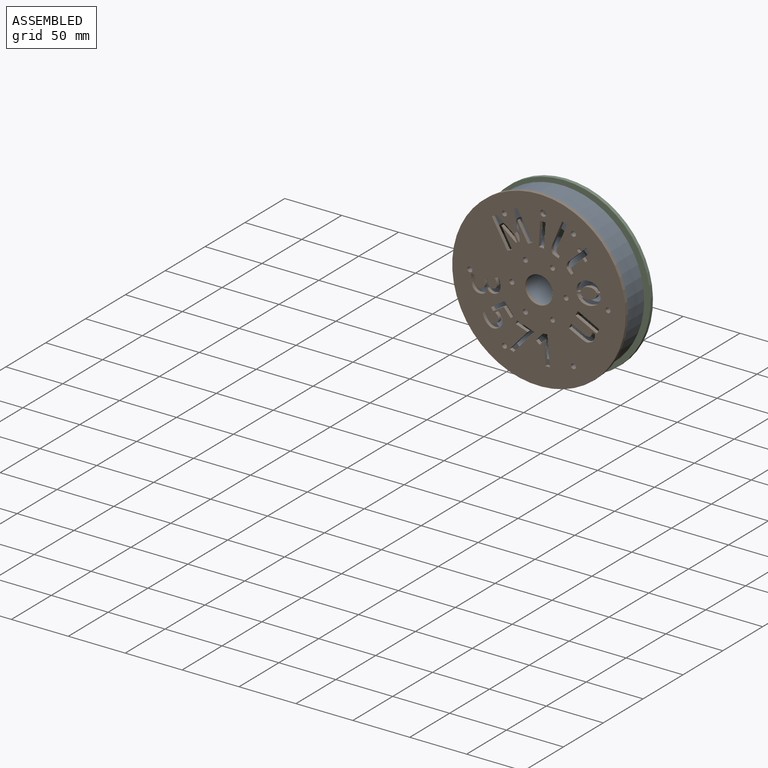
[diagram: assembled view]
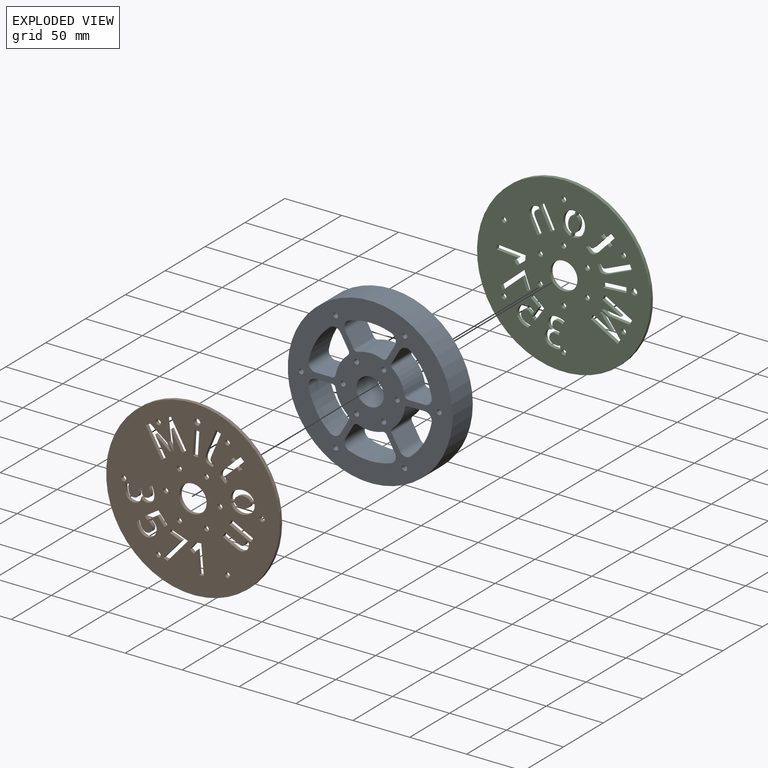
[diagram: exploded view]
GUIDED TOUR — MATED ASSEMBLY (Onshape document 58f788079ea4b90f86e522ae, AutoMate assembly 58f788079ea4b90f86e522ae_59f90559cadc7d9f1daaefe4_0afa27d7b1bdd366b675f6e3_default)

This assembly has 3 components, labeled P0..P2 below (a component is one placed occurrence of a part; the same part can appear more than once), held together by 4 mates. A mate is a constraint between two components; its type names the relative motion it leaves free:
  PARALLEL — keeps the two listed directions parallel.
Axis/direction vectors are unit vectors and 'through' points are millimeter coordinates, both in the assembly's world frame.

MATES
  1. PARALLEL "Parallel 1": P1 <-> P0, direction (0.000, 1.000, 0.000) through (36.96, 40.99, 50.69) mm
  2. PARALLEL "Parallel 3": P0 <-> P1, direction (0.000, -1.000, 0.000) through (36.96, 40.99, 50.69) mm
  3. PARALLEL "Parallel 4": P2 <-> P0, direction (0.000, -1.000, 0.000) through (38.71, 66.39, 51.34) mm
  4. PARALLEL "Parallel 2": P0 <-> P2, direction (0.000, 1.000, 0.000) through (36.96, 66.39, 50.69) mm

ASSEMBLY ORDER
  1. P2 — the base component [order verified]
  2. P0 [order verified]
  3. P1 [order verified]
Order-tag legend:
  [order verified] — this step's position reverses a verified removal order: the component was checked to insert without passing through the ones already placed.

Of the 3 components, 1 carries the full construction recipe — the FeatureScript program that regenerates the part's solid from scratch; the rest are supplied as boundary geometry only.
Each toured component is shown spotlighted twice — in the assembled view, then in the exploded view, where a leader line traces a displaced component back to its assembled socket (saturated green if recipe-attached, orange if geometry-only; every other component desaturated gray) — followed by its recipe or geometry summary and the mates that hold it.
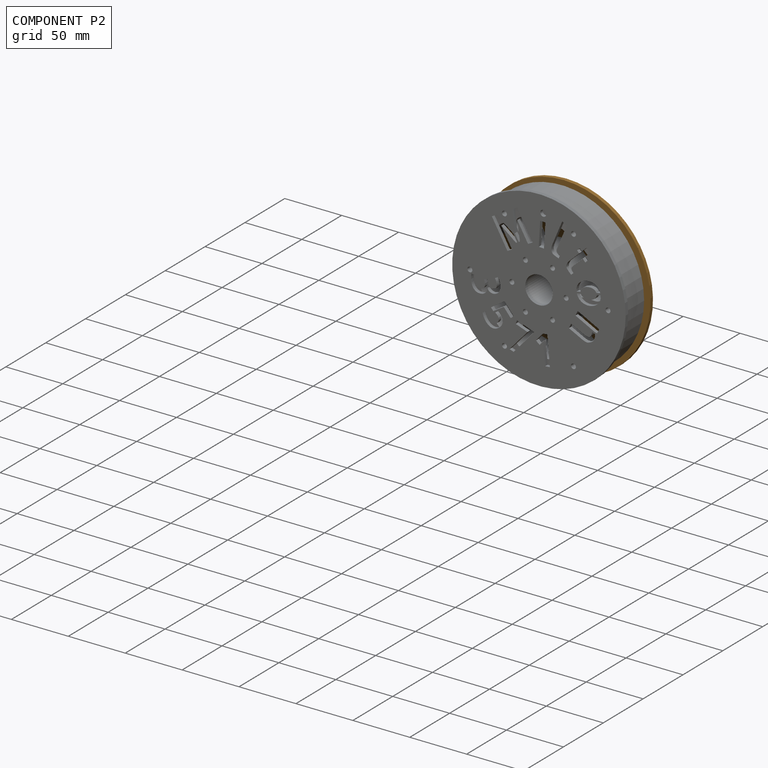
[diagram: component P2 — assembled]
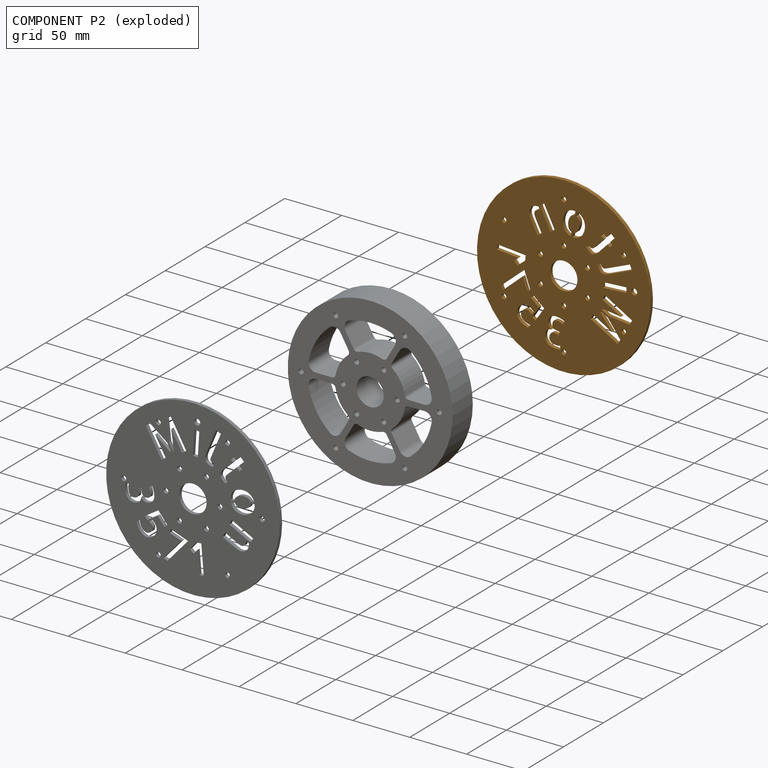
[diagram: component P2 — exploded]
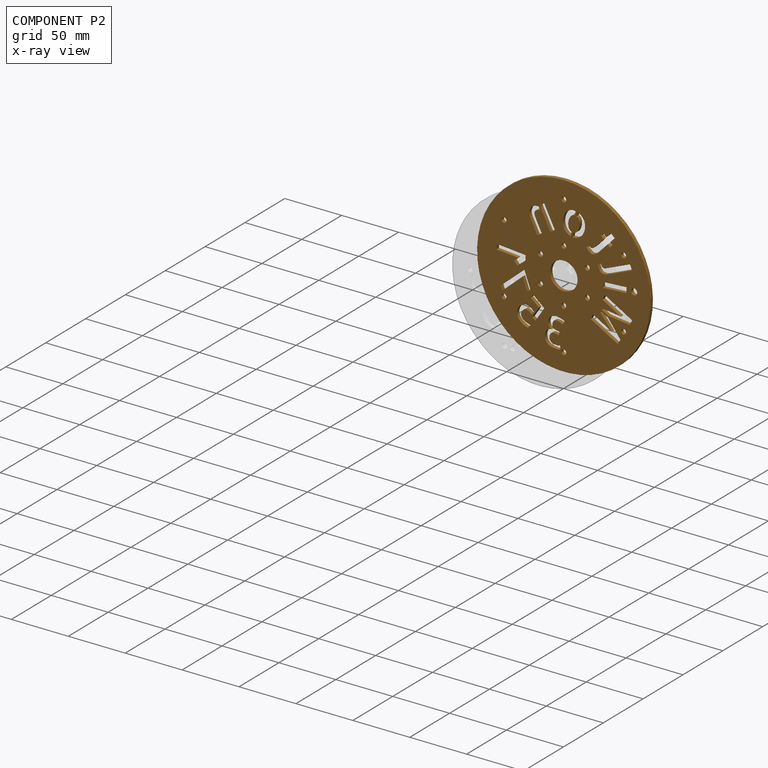
[diagram: component P2 — x-ray view]
COMPONENT P2 — geometry summary (no construction recipe available for this part):
  bounding box: 152.4 x 152.4 x 3.2 mm
  B-rep topology: 1 solid, 240 faces, 1428 edges
  volume: 50139 mm^3 (68% of its bounding box)
  symmetry: mirror-symmetric across its y mid-plane
Held by: PARALLEL mate "Parallel 4" to P0; PARALLEL mate "Parallel 2" to P0.
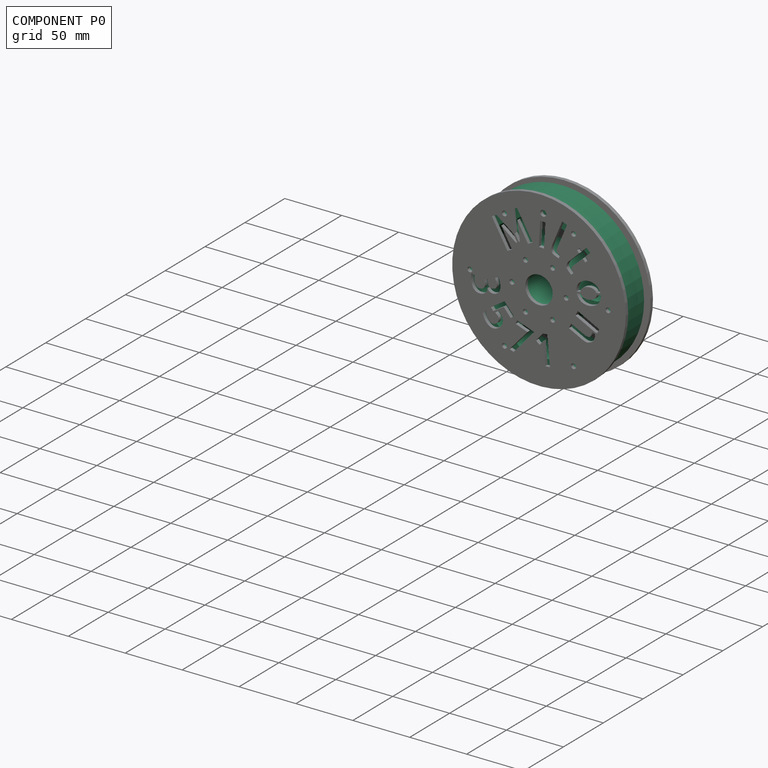
[diagram: component P0 — assembled]
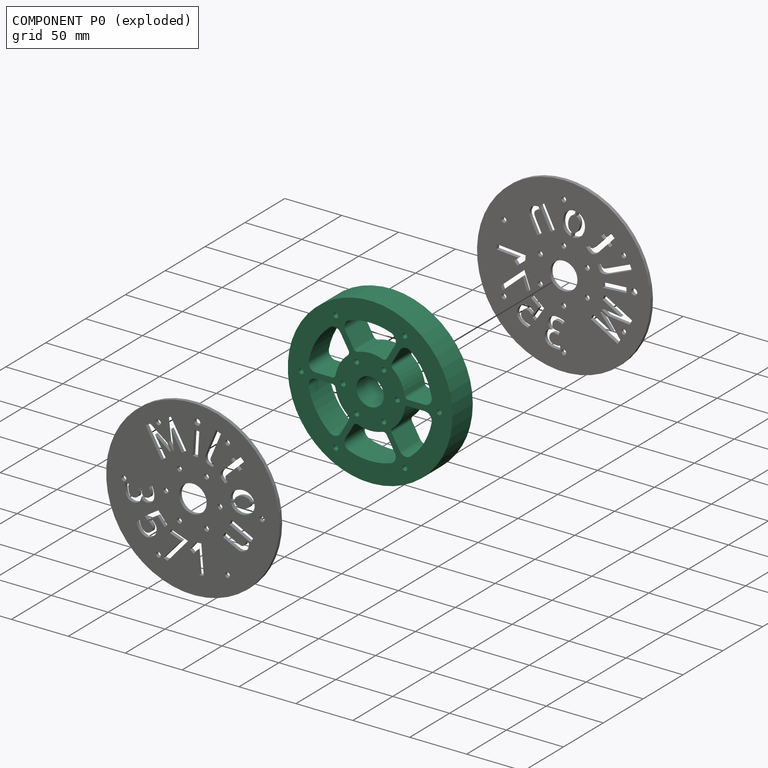
[diagram: component P0 — exploded]
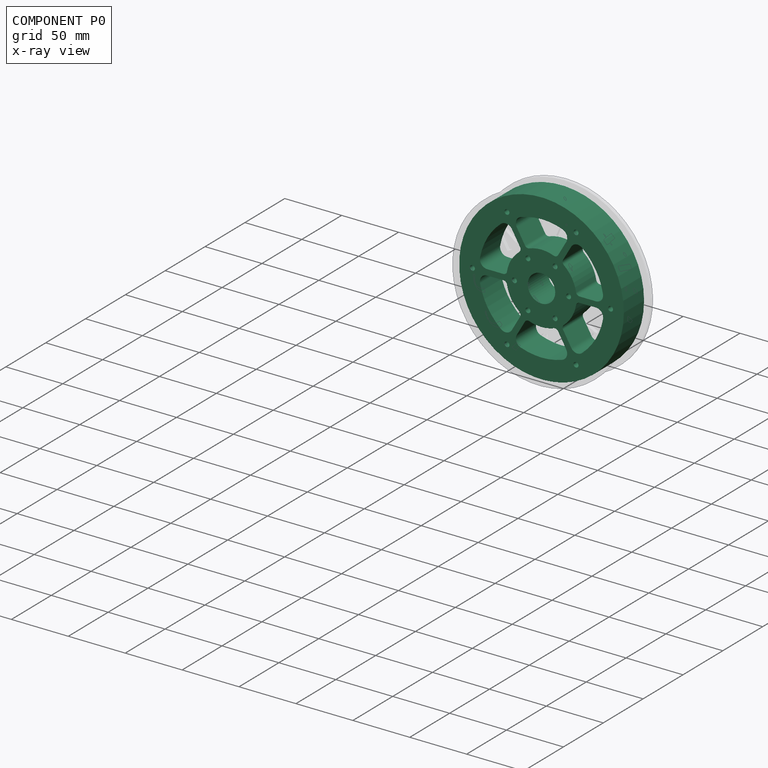
[diagram: component P0 — x-ray view]
COMPONENT P0 — recipe-attached (CADFS 00721105, mesh-verified: the recipe's output STEP matches this component's geometry to below the mesh-comparison resolution (tessellation chordal tolerance ~0.309 mm)).
Held by: PARALLEL mate "Parallel 1" to P1; PARALLEL mate "Parallel 3" to P1; PARALLEL mate "Parallel 4" to P2; PARALLEL mate "Parallel 2" to P2.
Construction recipe (FeatureScript — the CAD program that rebuilds this solid; sketch coordinates are in the units given by the * unit suffixes, e.g. mm):

FeatureScript 1549;
import(path : "onshape/std/geometry.fs", version : "1549.0");
import(path : "onshape/std/common.fs", version : "1549.0");
const mm = millimeter;
const VERTEX = EntityType.VERTEX;
const EDGE = EntityType.EDGE;
const FACE = EntityType.FACE;
const BODY = EntityType.BODY;
function v(x, y){return vector(x, y);}
function OD(order){return orderDisambiguation(order);}
function OSD(set){return originalSetDisambiguation(set);}
function TD(topology){return topologyDisambiguation(topology);}
function TDD(query){return trueDependencyDisambiguation(query);}
function sQuery(a, b, c) {return sketchEntityQuery(a, b, c);}

annotation { "Feature Type Name" : "Feature", "Feature Type Description" : "" }
export const myFeature = defineFeature(function(context is Context, id is Id, definition is map)
    precondition{}
    {
        {
            var Q0;
            Q0=qCreatedBy(makeId("Front.planeOp"),FACE);
            var sketch = newSketch(context, id + "F0", { "sketchPlane" : qUnion([Q0])});
            skCircle(sketch, "E0", {"center": v(0, 0) * mm, "radius": 12.07 * mm});
            skCircle(sketch, "E1", {"center": v(0, 0) * mm, "radius": 72.4 * mm});
            skArc(sketch, "E2", {"start": v(10.72, 28.9) * mm, "mid": v(5.44, 30.32) * mm, "end": v(0, 30.84) * mm});
            skArc(sketch, "E3", {"start": v(18.26, 51.81) * mm, "mid": v(9.26, 54.13) * mm, "end": v(0, 54.94) * mm});
            skPoint(sketch, "E4.visualSharp", {"position": v(25.27, 48.85) * mm});
            skArc(sketch, "E4.filletArc", {"start": v(21.68, 42.64) * mm, "mid": v(22.13, 48.03) * mm, "end": v(18.26, 51.81) * mm});
            skArc(sketch, "E5.MirrorCS", {"start": v(-18.26, 51.81) * mm, "mid": v(-9.26, 54.13) * mm, "end": v(0, 54.94) * mm});
            skArc(sketch, "E6.MirrorCS", {"start": v(-21.68, 42.64) * mm, "mid": v(-22.13, 48.03) * mm, "end": v(-18.26, 51.81) * mm});
            skArc(sketch, "E7.MirrorCS", {"start": v(-10.72, 28.9) * mm, "mid": v(-5.44, 30.32) * mm, "end": v(0, 30.84) * mm});
            skLineSegment(sketch, "E8", {"start": v(-21.68, 42.64) * mm, "end": v(-14.55, 30.29) * mm});
            skLineSegment(sketch, "E9", {"start": v(21.68, 42.64) * mm, "end": v(14.55, 30.29) * mm});
            skPoint(sketch, "E10.visualSharp", {"position": v(-13.17, 27.88) * mm});
            skArc(sketch, "E10.filletArc", {"start": v(-14.55, 30.29) * mm, "mid": v(-12.89, 28.9) * mm, "end": v(-10.72, 28.9) * mm});
            skPoint(sketch, "E11.visualSharp", {"position": v(13.17, 27.88) * mm});
            skArc(sketch, "E11.filletArc", {"start": v(10.72, 28.9) * mm, "mid": v(12.89, 28.9) * mm, "end": v(14.55, 30.29) * mm});
            skPoint(sketch, "E12.1.0", {"position": v(-30.73, 2.54) * mm});
            skArc(sketch, "E12.1.1", {"start": v(-35.74, 41.72) * mm, "mid": v(-42.24, 35.08) * mm, "end": v(-47.58, 27.47) * mm});
            skArc(sketch, "E12.1.2", {"start": v(-54, 10.1) * mm, "mid": v(-51.5, 19.04) * mm, "end": v(-47.58, 27.47) * mm});
            skPoint(sketch, "E12.1.3", {"position": v(-29.67, 46.3) * mm});
            skLineSegment(sketch, "E12.1.4", {"start": v(-26.08, 40.1) * mm, "end": v(-18.95, 27.75) * mm});
            skArc(sketch, "E12.1.5", {"start": v(-26.08, 40.1) * mm, "mid": v(-30.53, 43.19) * mm, "end": v(-35.74, 41.72) * mm});
            skArc(sketch, "E12.1.6", {"start": v(-19.66, 23.73) * mm, "mid": v(-23.54, 19.87) * mm, "end": v(-26.7, 15.42) * mm});
            skArc(sketch, "E12.1.7", {"start": v(-19.66, 23.73) * mm, "mid": v(-18.58, 25.6) * mm, "end": v(-18.95, 27.75) * mm});
            skLineSegment(sketch, "E12.1.8", {"start": v(-47.77, 2.54) * mm, "end": v(-33.5, 2.54) * mm});
            skArc(sketch, "E12.1.9", {"start": v(-30.38, 5.17) * mm, "mid": v(-28.98, 10.45) * mm, "end": v(-26.7, 15.42) * mm});
            skArc(sketch, "E12.1.10", {"start": v(-33.5, 2.54) * mm, "mid": v(-31.47, 3.28) * mm, "end": v(-30.38, 5.17) * mm});
            skPoint(sketch, "E12.1.11", {"position": v(-17.57, 25.34) * mm});
            skArc(sketch, "E12.1.12", {"start": v(-47.77, 2.54) * mm, "mid": v(-52.66, 4.85) * mm, "end": v(-54, 10.1) * mm});
            skPoint(sketch, "E12.2.0", {"position": v(-17.57, -25.34) * mm});
            skArc(sketch, "E12.2.1", {"start": v(-54, -10.1) * mm, "mid": v(-51.5, -19.04) * mm, "end": v(-47.58, -27.47) * mm});
            skArc(sketch, "E12.2.2", {"start": v(-35.74, -41.72) * mm, "mid": v(-42.24, -35.08) * mm, "end": v(-47.58, -27.47) * mm});
            skPoint(sketch, "E12.2.3", {"position": v(-54.94, -2.54) * mm});
            skLineSegment(sketch, "E12.2.4", {"start": v(-47.77, -2.54) * mm, "end": v(-33.5, -2.54) * mm});
            skArc(sketch, "E12.2.5", {"start": v(-47.77, -2.54) * mm, "mid": v(-52.66, -4.85) * mm, "end": v(-54, -10.1) * mm});
            skArc(sketch, "E12.2.6", {"start": v(-30.38, -5.17) * mm, "mid": v(-28.98, -10.45) * mm, "end": v(-26.7, -15.42) * mm});
            skArc(sketch, "E12.2.7", {"start": v(-30.38, -5.17) * mm, "mid": v(-31.47, -3.28) * mm, "end": v(-33.5, -2.54) * mm});
            skLineSegment(sketch, "E12.2.8", {"start": v(-26.08, -40.1) * mm, "end": v(-18.95, -27.75) * mm});
            skArc(sketch, "E12.2.9", {"start": v(-19.66, -23.73) * mm, "mid": v(-23.54, -19.87) * mm, "end": v(-26.7, -15.42) * mm});
            skArc(sketch, "E12.2.10", {"start": v(-18.95, -27.75) * mm, "mid": v(-18.58, -25.6) * mm, "end": v(-19.66, -23.73) * mm});
            skPoint(sketch, "E12.2.11", {"position": v(-30.73, -2.54) * mm});
            skArc(sketch, "E12.2.12", {"start": v(-26.08, -40.1) * mm, "mid": v(-30.53, -43.19) * mm, "end": v(-35.74, -41.72) * mm});
            skPoint(sketch, "E12.3.0", {"position": v(13.17, -27.88) * mm});
            skArc(sketch, "E12.3.1", {"start": v(-18.26, -51.81) * mm, "mid": v(-9.26, -54.13) * mm, "end": v(0, -54.94) * mm});
            skArc(sketch, "E12.3.2", {"start": v(18.26, -51.81) * mm, "mid": v(9.26, -54.13) * mm, "end": v(0, -54.94) * mm});
            skPoint(sketch, "E12.3.3", {"position": v(-25.27, -48.85) * mm});
            skLineSegment(sketch, "E12.3.4", {"start": v(-21.68, -42.64) * mm, "end": v(-14.55, -30.29) * mm});
            skArc(sketch, "E12.3.5", {"start": v(-21.68, -42.64) * mm, "mid": v(-22.13, -48.03) * mm, "end": v(-18.26, -51.81) * mm});
            skArc(sketch, "E12.3.6", {"start": v(-10.72, -28.9) * mm, "mid": v(-5.44, -30.32) * mm, "end": v(0, -30.84) * mm});
            skArc(sketch, "E12.3.7", {"start": v(-10.72, -28.9) * mm, "mid": v(-12.89, -28.9) * mm, "end": v(-14.55, -30.29) * mm});
            skLineSegment(sketch, "E12.3.8", {"start": v(21.68, -42.64) * mm, "end": v(14.55, -30.29) * mm});
            skArc(sketch, "E12.3.9", {"start": v(10.72, -28.9) * mm, "mid": v(5.44, -30.32) * mm, "end": v(0, -30.84) * mm});
            skArc(sketch, "E12.3.10", {"start": v(14.55, -30.29) * mm, "mid": v(12.89, -28.9) * mm, "end": v(10.72, -28.9) * mm});
            skPoint(sketch, "E12.3.11", {"position": v(-13.17, -27.88) * mm});
            skArc(sketch, "E12.3.12", {"start": v(21.68, -42.64) * mm, "mid": v(22.13, -48.03) * mm, "end": v(18.26, -51.81) * mm});
            skPoint(sketch, "E12.4.0", {"position": v(30.73, -2.54) * mm});
            skArc(sketch, "E12.4.1", {"start": v(35.74, -41.72) * mm, "mid": v(42.24, -35.08) * mm, "end": v(47.58, -27.47) * mm});
            skArc(sketch, "E12.4.2", {"start": v(54, -10.1) * mm, "mid": v(51.5, -19.04) * mm, "end": v(47.58, -27.47) * mm});
            skPoint(sketch, "E12.4.3", {"position": v(29.67, -46.3) * mm});
            skLineSegment(sketch, "E12.4.4", {"start": v(26.08, -40.1) * mm, "end": v(18.95, -27.75) * mm});
            skArc(sketch, "E12.4.5", {"start": v(26.08, -40.1) * mm, "mid": v(30.53, -43.19) * mm, "end": v(35.74, -41.72) * mm});
            skArc(sketch, "E12.4.6", {"start": v(19.66, -23.73) * mm, "mid": v(23.54, -19.87) * mm, "end": v(26.7, -15.42) * mm});
            skArc(sketch, "E12.4.7", {"start": v(19.66, -23.73) * mm, "mid": v(18.58, -25.6) * mm, "end": v(18.95, -27.75) * mm});
            skLineSegment(sketch, "E12.4.8", {"start": v(47.77, -2.54) * mm, "end": v(33.5, -2.54) * mm});
            skArc(sketch, "E12.4.9", {"start": v(30.38, -5.17) * mm, "mid": v(28.98, -10.45) * mm, "end": v(26.7, -15.42) * mm});
            skArc(sketch, "E12.4.10", {"start": v(33.5, -2.54) * mm, "mid": v(31.47, -3.28) * mm, "end": v(30.38, -5.17) * mm});
            skPoint(sketch, "E12.4.11", {"position": v(17.57, -25.34) * mm});
            skArc(sketch, "E12.4.12", {"start": v(47.77, -2.54) * mm, "mid": v(52.66, -4.85) * mm, "end": v(54, -10.1) * mm});
            skPoint(sketch, "E12.5.0", {"position": v(17.57, 25.34) * mm});
            skArc(sketch, "E12.5.1", {"start": v(54, 10.1) * mm, "mid": v(51.5, 19.04) * mm, "end": v(47.58, 27.47) * mm});
            skArc(sketch, "E12.5.2", {"start": v(35.74, 41.72) * mm, "mid": v(42.24, 35.08) * mm, "end": v(47.58, 27.47) * mm});
            skPoint(sketch, "E12.5.3", {"position": v(54.94, 2.54) * mm});
            skLineSegment(sketch, "E12.5.4", {"start": v(47.77, 2.54) * mm, "end": v(33.5, 2.54) * mm});
            skArc(sketch, "E12.5.5", {"start": v(47.77, 2.54) * mm, "mid": v(52.66, 4.85) * mm, "end": v(54, 10.1) * mm});
            skArc(sketch, "E12.5.6", {"start": v(30.38, 5.17) * mm, "mid": v(28.98, 10.45) * mm, "end": v(26.7, 15.42) * mm});
            skArc(sketch, "E12.5.7", {"start": v(30.38, 5.17) * mm, "mid": v(31.47, 3.28) * mm, "end": v(33.5, 2.54) * mm});
            skLineSegment(sketch, "E12.5.8", {"start": v(26.08, 40.1) * mm, "end": v(18.95, 27.75) * mm});
            skArc(sketch, "E12.5.9", {"start": v(19.66, 23.73) * mm, "mid": v(23.54, 19.87) * mm, "end": v(26.7, 15.42) * mm});
            skArc(sketch, "E12.5.10", {"start": v(18.95, 27.75) * mm, "mid": v(18.58, 25.6) * mm, "end": v(19.66, 23.73) * mm});
            skPoint(sketch, "E12.5.11", {"position": v(30.73, 2.54) * mm});
            skArc(sketch, "E12.5.12", {"start": v(26.08, 40.1) * mm, "mid": v(30.53, 43.19) * mm, "end": v(35.74, 41.72) * mm});
            skCircle(sketch, "E13", {"center": v(-23.81, 0) * mm, "radius": 2.16 * mm});
            skCircle(sketch, "E14.1.0", {"center": v(-11.9, -20.62) * mm, "radius": 2.16 * mm});
            skCircle(sketch, "E14.2.0", {"center": v(11.9, -20.62) * mm, "radius": 2.16 * mm});
            skCircle(sketch, "E14.3.0", {"center": v(23.81, 0) * mm, "radius": 2.16 * mm});
            skCircle(sketch, "E14.4.0", {"center": v(11.9, 20.62) * mm, "radius": 2.16 * mm});
            skCircle(sketch, "E14.5.0", {"center": v(-11.9, 20.62) * mm, "radius": 2.16 * mm});
            skCircle(sketch, "E15", {"center": v(30.34, -52.55) * mm, "radius": 2.16 * mm});
            skCircle(sketch, "E16.1.0", {"center": v(60.68, 0) * mm, "radius": 2.16 * mm});
            skCircle(sketch, "E16.2.0", {"center": v(30.34, 52.55) * mm, "radius": 2.16 * mm});
            skCircle(sketch, "E16.3.0", {"center": v(-30.34, 52.55) * mm, "radius": 2.16 * mm});
            skCircle(sketch, "E16.4.0", {"center": v(-60.68, 0) * mm, "radius": 2.16 * mm});
            skCircle(sketch, "E16.5.0", {"center": v(-30.34, -52.55) * mm, "radius": 2.16 * mm});
            skSolve(sketch);
        }
        {
            var Q0;
            Q0=makeQuery(id+"F0.imprint","IMPRINT",FACE,{"disambiguationData":[TD([[makeQuery(id+"F0.imprint","IMPRINT",EDGE,{"derivedFrom":sQuery(id+"F0.wireOp",EDGE,"E0")}),-1.0]])]});
            extrude(context, id + "F1", {"entities" : qUnion([Q0]), "depth" : 25.4 * mm, "offsetDistance" : 25.4 * mm});
        }
    });
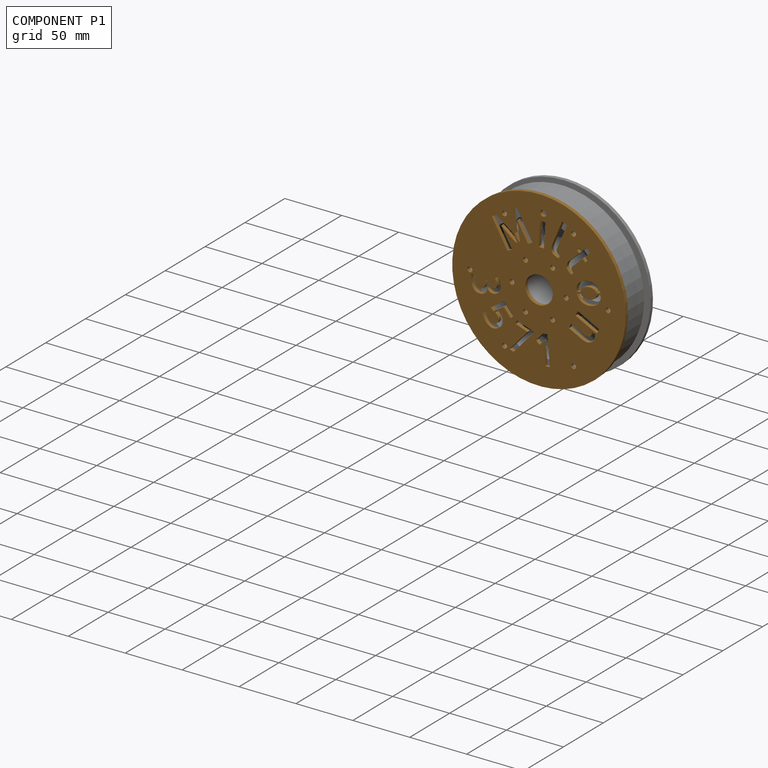
[diagram: component P1 — assembled]
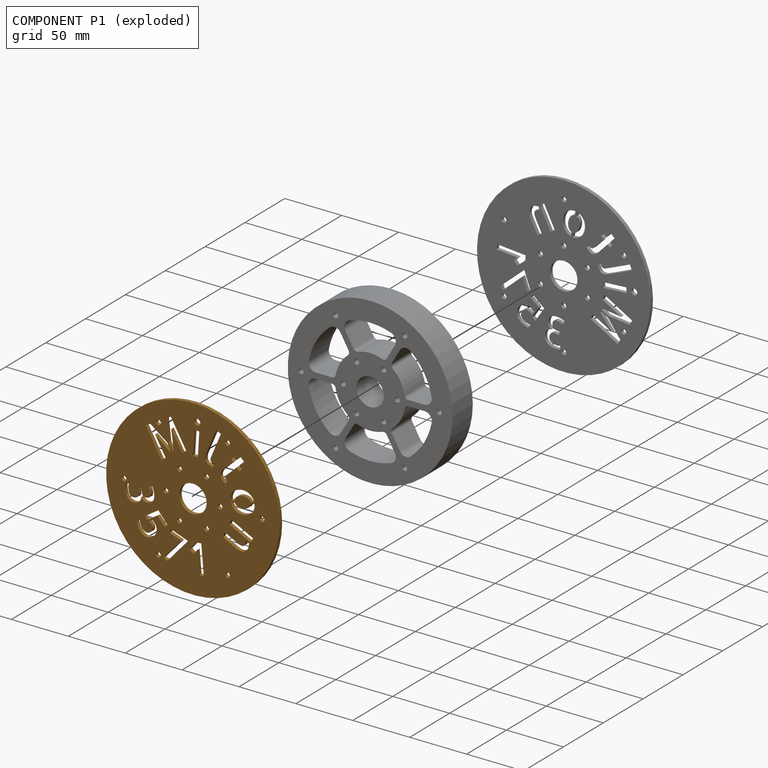
[diagram: component P1 — exploded]
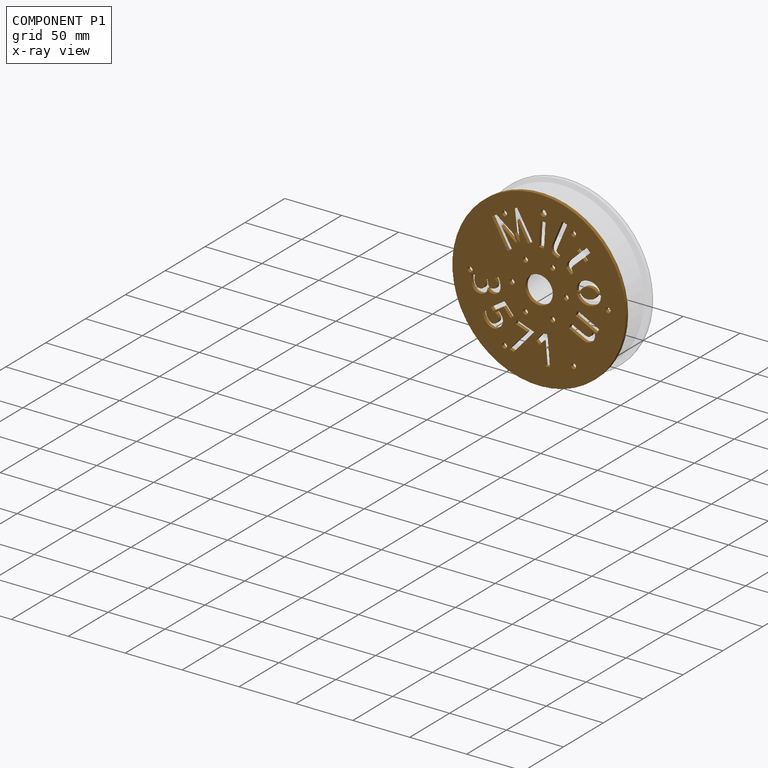
[diagram: component P1 — x-ray view]
COMPONENT P1 — geometry summary (no construction recipe available for this part):
  bounding box: 152.4 x 152.4 x 3.2 mm
  B-rep topology: 1 solid, 240 faces, 1428 edges
  volume: 50139 mm^3 (68% of its bounding box)
  symmetry: mirror-symmetric across its y mid-plane
Held by: PARALLEL mate "Parallel 1" to P0; PARALLEL mate "Parallel 3" to P0.
PROVENANCE & LICENSES
Assembly (occurrences, transforms, mates, per-part STEP geometry): AutoMate dataset, Zenodo record 7776208, CC0.
Construction recipes: CADFS (HuggingFace VladPyatov/CADFS, CC-BY-4.0, layered over the ABC dataset), FeatureScript reconstruction programs keyed by ABC model id.
Join: ABC meta listings map ABC model id -> Onshape documentId; within a shared document, parts are matched by geometric signature (bounding-box dims + volume at 0.1% relative tolerance, exact B-rep face/solid counts).
Verification: 1 of this assembly's 3 components carries a recipe attachment, and every attachment is mesh-verified: the CADFS STEP and the AutoMate member STEP were compared as meshes in their shared local frame (symmetric sampled-point-to-mesh distance); worst across the 1 attachment: below the mesh-comparison resolution (tessellation chordal tolerance ~0.309 mm) on a 206 mm part.
Renders: orthographic iso camera (az 35 / el 25); the floor grid conveys scale (grid pitch printed in each image; no ruler). In the exploded view each component is displaced by its stored offset vector: the offsets alone carry the explosion direction (mate normal/axis signs are not orientation cues and do not encode it), and separation distances are assigned per mate-chain, not proportionally to assembly-order depth.
